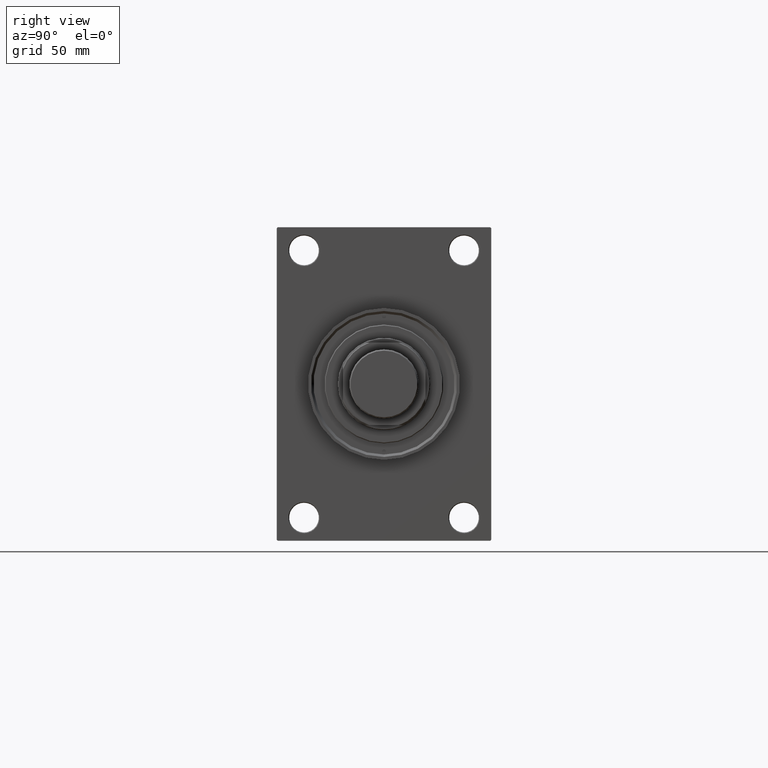
[diagram: clean part render]
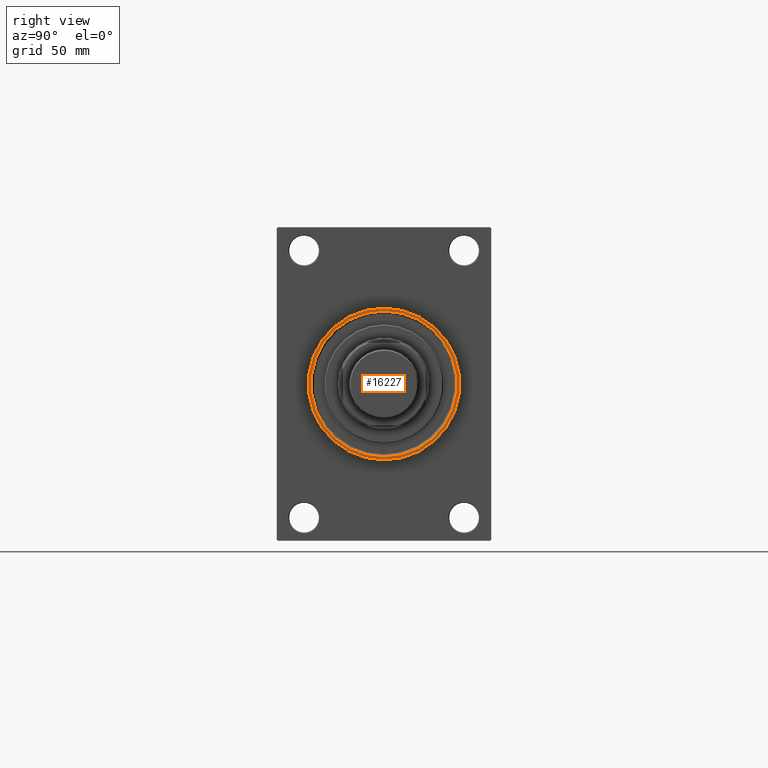
[diagram: same view with one face highlighted and labeled with its STEP entity id]
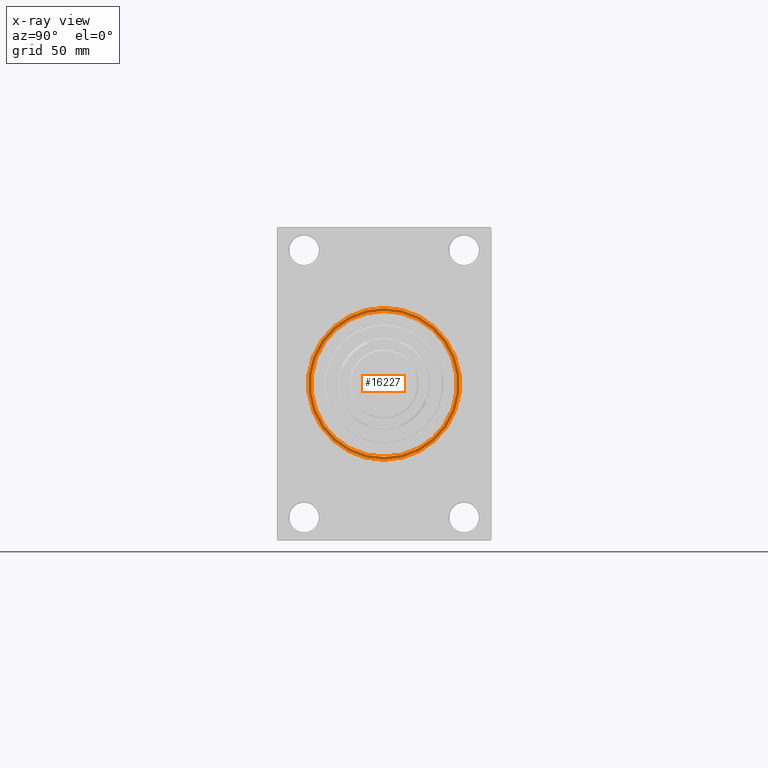
[diagram: x-ray of the same camera — body ghosted, the highlighted face saturated]
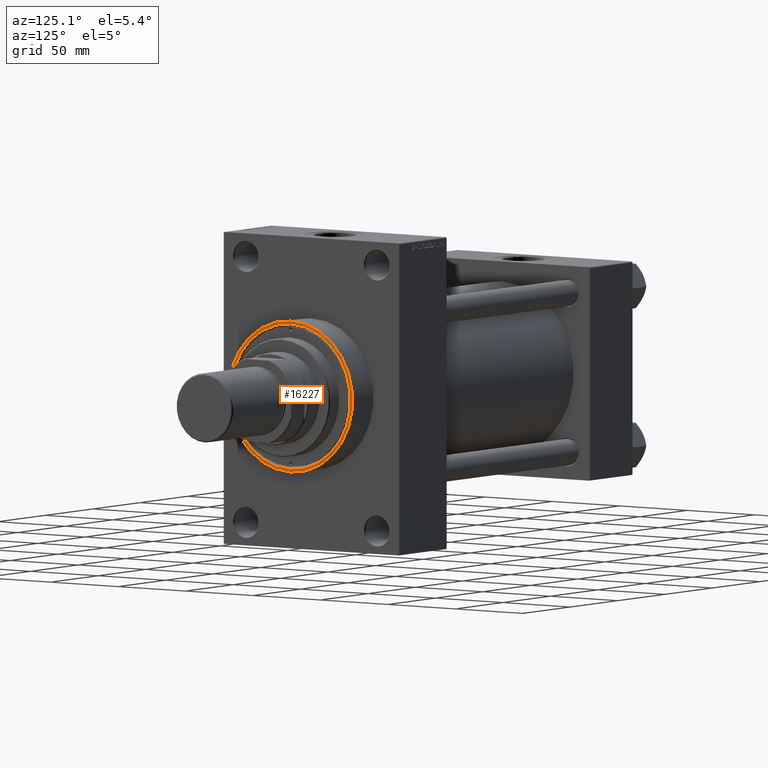
[diagram: same view with one face highlighted and labeled with its STEP entity id]
A machine part, right view. The second image highlights one B-rep face of the part: STEP entity #16227.
The next image is the same camera in x-ray: the body ghosted, the highlighted face saturated — about 0% of this face is hidden behind the body in this view.
A second angle (auxiliary view) of the same face is appended — the face is thin or edge-on in the first view.
In plain terms, the highlighted planar face has unit normal (1, 0, 0).
Its self-contained STEP definition (entity closure, byte-faithful):
#116 = EDGE_LOOP ( 'NONE', ( #24675, #24191 ) ) ;
#355 = FACE_OUTER_BOUND ( 'NONE', #116, .T. ) ;
#834 = PLANE ( 'NONE',  #39137 ) ;
#3243 = VERTEX_POINT ( 'NONE', #39583 ) ;
#6564 = VERTEX_POINT ( 'NONE', #14294 ) ;
#7604 = DIRECTION ( 'NONE',  ( 1.000000000000000000, 0.000000000000000000, 0.000000000000000000 ) ) ;
#9224 = CARTESIAN_POINT ( 'NONE',  ( 268.0000000000000000, 0.000000000000000000, 0.000000000000000000 ) ) ;
#10454 = EDGE_CURVE ( 'NONE', #35377, #15535, #20170, .T. ) ;
#12113 = DIRECTION ( 'NONE',  ( 0.000000000000000000, 0.000000000000000000, -1.000000000000000000 ) ) ;
#13218 = EDGE_CURVE ( 'NONE', #6564, #3243, #35141, .T. ) ;
#14052 = AXIS2_PLACEMENT_3D ( 'NONE', #9224, #27584, #23664 ) ;
#14294 = CARTESIAN_POINT ( 'NONE',  ( 268.0000000000000000, 0.000000000000000000, -44.24999999999992895 ) ) ;
#15087 = EDGE_CURVE ( 'NONE', #3243, #6564, #22693, .T. ) ;
#15298 = CARTESIAN_POINT ( 'NONE',  ( 268.0000000000000000, 0.000000000000000000, 0.000000000000000000 ) ) ;
#15535 = VERTEX_POINT ( 'NONE', #46446 ) ;
#16227 = ADVANCED_FACE ( 'NONE', ( #19433, #355 ), #834, .T. ) ;
#16282 = CARTESIAN_POINT ( 'NONE',  ( 268.0000000000000000, 0.000000000000000000, 0.000000000000000000 ) ) ;
#16762 = DIRECTION ( 'NONE',  ( 1.000000000000000000, 0.000000000000000000, 0.000000000000000000 ) ) ;
#19433 = FACE_BOUND ( 'NONE', #25933, .T. ) ;
#20170 = CIRCLE ( 'NONE', #27197, 46.00000000000000000 ) ;
#20742 = EDGE_CURVE ( 'NONE', #15535, #35377, #34606, .T. ) ;
#22693 = CIRCLE ( 'NONE', #32053, 44.24999999999992895 ) ;
#23498 = CARTESIAN_POINT ( 'NONE',  ( 268.0000000000000000, 0.000000000000000000, 0.000000000000000000 ) ) ;
#23664 = DIRECTION ( 'NONE',  ( 0.000000000000000000, 0.000000000000000000, -1.000000000000000000 ) ) ;
#24191 = ORIENTED_EDGE ( 'NONE', *, *, #10454, .T. ) ;
#24434 = ORIENTED_EDGE ( 'NONE', *, *, #13218, .T. ) ;
#24675 = ORIENTED_EDGE ( 'NONE', *, *, #20742, .T. ) ;
#25933 = EDGE_LOOP ( 'NONE', ( #24434, #26913 ) ) ;
#25961 = DIRECTION ( 'NONE',  ( 0.000000000000000000, 0.000000000000000000, -1.000000000000000000 ) ) ;
#26913 = ORIENTED_EDGE ( 'NONE', *, *, #15087, .T. ) ;
#27197 = AXIS2_PLACEMENT_3D ( 'NONE', #16282, #16762, #46142 ) ;
#27584 = DIRECTION ( 'NONE',  ( -1.000000000000000000, -0.000000000000000000, -0.000000000000000000 ) ) ;
#28355 = AXIS2_PLACEMENT_3D ( 'NONE', #37955, #7604, #25961 ) ;
#31333 = DIRECTION ( 'NONE',  ( -1.000000000000000000, -0.000000000000000000, -0.000000000000000000 ) ) ;
#32053 = AXIS2_PLACEMENT_3D ( 'NONE', #23498, #31333, #34761 ) ;
#34570 = CARTESIAN_POINT ( 'NONE',  ( 268.0000000000000000, 5.633375276077824704E-15, -46.00000000000000000 ) ) ;
#34606 = CIRCLE ( 'NONE', #28355, 46.00000000000000000 ) ;
#34761 = DIRECTION ( 'NONE',  ( 0.000000000000000000, 0.000000000000000000, -1.000000000000000000 ) ) ;
#35141 = CIRCLE ( 'NONE', #14052, 44.24999999999992895 ) ;
#35377 = VERTEX_POINT ( 'NONE', #34570 ) ;
#37955 = CARTESIAN_POINT ( 'NONE',  ( 268.0000000000000000, 0.000000000000000000, 0.000000000000000000 ) ) ;
#39137 = AXIS2_PLACEMENT_3D ( 'NONE', #15298, #45159, #12113 ) ;
#39583 = CARTESIAN_POINT ( 'NONE',  ( 268.0000000000000000, 5.419062086227029517E-15, 44.24999999999992895 ) ) ;
#45159 = DIRECTION ( 'NONE',  ( 1.000000000000000000, 0.000000000000000000, 0.000000000000000000 ) ) ;
#46142 = DIRECTION ( 'NONE',  ( 0.000000000000000000, 0.000000000000000000, -1.000000000000000000 ) ) ;
#46446 = CARTESIAN_POINT ( 'NONE',  ( 268.0000000000000000, 0.000000000000000000, 46.00000000000000000 ) ) ;